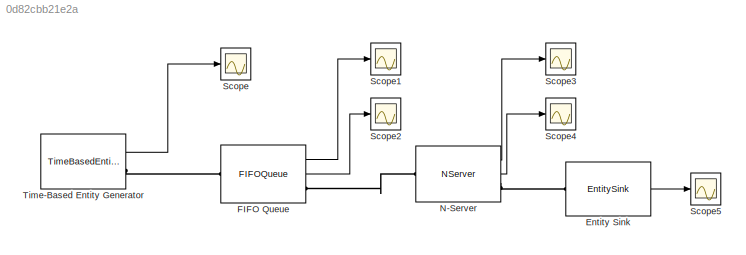
MODEL slx_0d82cbb21e2a
KIND model
BLOCK [EntitySink] Entity Sink
  OutputPortMap = o0
  Ports = [0, 1, 0, 0, 0, 1]
  StatNumberArrived = on
BLOCK [FIFOQueue] FIFO Queue
  OutputPortMap = o0,o1
  Ports = [0, 2, 0, 0, 0, 1, 1]
  StatNumberDeparted = on
  StatNumberInBlock = on
BLOCK [NServer] N-Server
  OutputPortMap = o0,o1
  Ports = [0, 2, 0, 0, 0, 1, 1]
  StatNumberDeparted = on
  StatNumberInBlock = on
BLOCK [Scope] Scope
  DataFormat = StructureWithTime
  Floating = off
  NumInputPorts = 1
  Ports = [1]
  SampleTime = 0
  ShowLegends = off
BLOCK [Scope] Scope1
  DataFormat = StructureWithTime
  Floating = off
  NumInputPorts = 1
  Ports = [1]
  SampleTime = 0
  SaveName = ScopeData1
  ShowLegends = off
  TimeRange = 100
BLOCK [Scope] Scope2
  DataFormat = StructureWithTime
  Floating = off
  NumInputPorts = 1
  Ports = [1]
  SampleTime = 0
  SaveName = ScopeData2
  ShowLegends = off
  ZoomMode = yonly
BLOCK [Scope] Scope3
  DataFormat = StructureWithTime
  Floating = off
  NumInputPorts = 1
  Ports = [1]
  SampleTime = 0
  SaveName = ScopeData3
  ShowLegends = off
BLOCK [Scope] Scope4
  DataFormat = StructureWithTime
  Floating = off
  NumInputPorts = 1
  Ports = [1]
  SampleTime = 0
  SaveName = ScopeData4
  ShowLegends = off
BLOCK [Scope] Scope5
  DataFormat = StructureWithTime
  Floating = off
  NumInputPorts = 1
  Ports = [1]
  SampleTime = 0
  SaveName = ScopeData5
  ShowLegends = off
BLOCK [TimeBasedEntityGenerator] Time-Based Entity Generator
  Distribution = Exponential
  Maximum = 22
  Mean = 0.2
  Minimum = 12
  OutputPortMap = o0
  Ports = [0, 1, 0, 0, 0, 0, 1]
  StatNumberDeparted = on
LINE Entity Sink:1 -> Scope5:1
LINE FIFO Queue:1 -> Scope1:1
LINE FIFO Queue:2 -> Scope2:1
LINE N-Server:1 -> Scope3:1
LINE N-Server:2 -> Scope4:1
LINE Time-Based Entity Generator:1 -> Scope:1
PLINE Entity Sink:LConn1 -- N-Server:RConn1
PLINE FIFO Queue:LConn1 -- Time-Based Entity Generator:RConn1
PLINE FIFO Queue:RConn1 -- N-Server:LConn1
